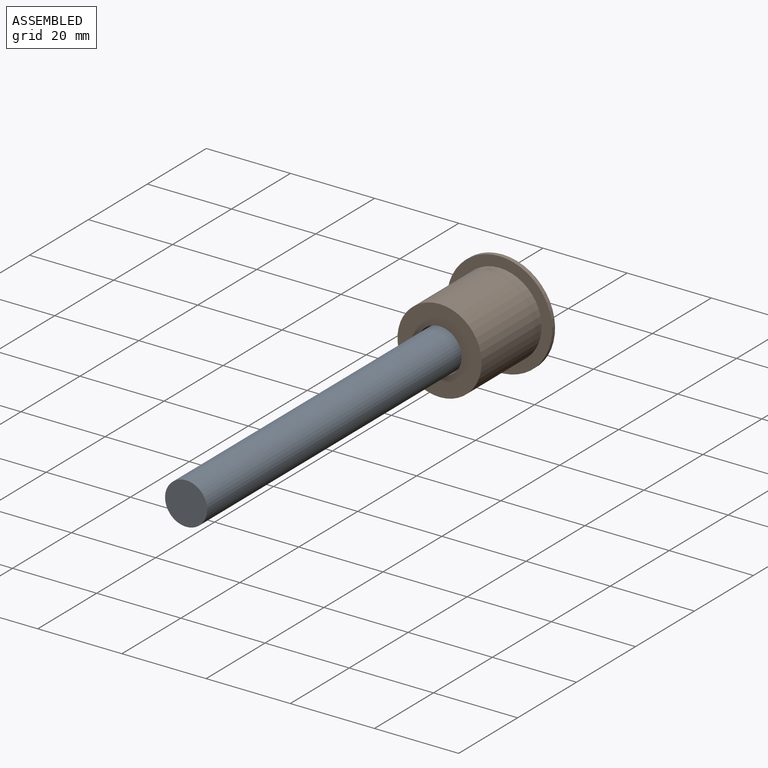
[diagram: assembled view]
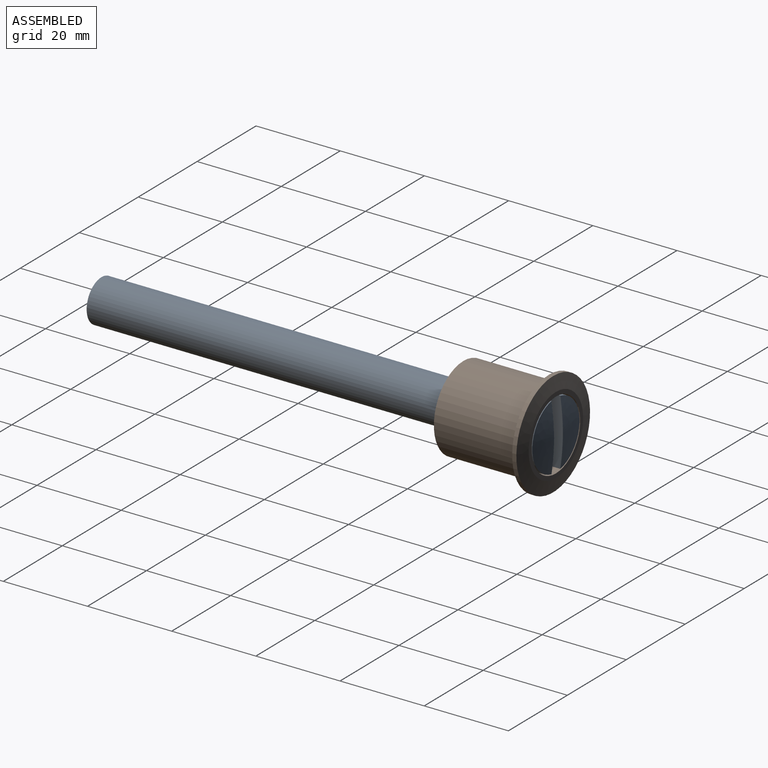
[diagram: assembled view, second angle]
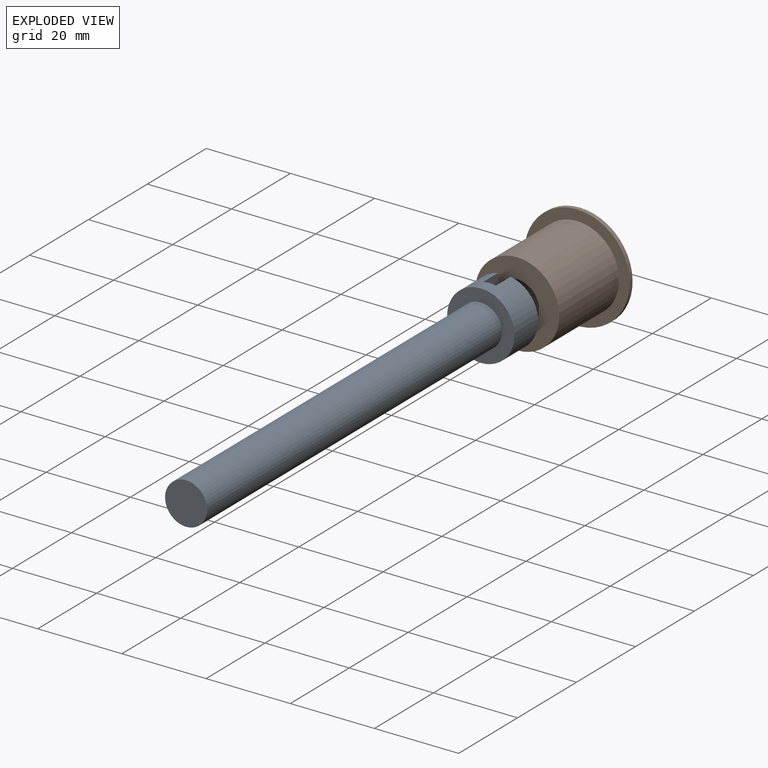
[diagram: exploded view]
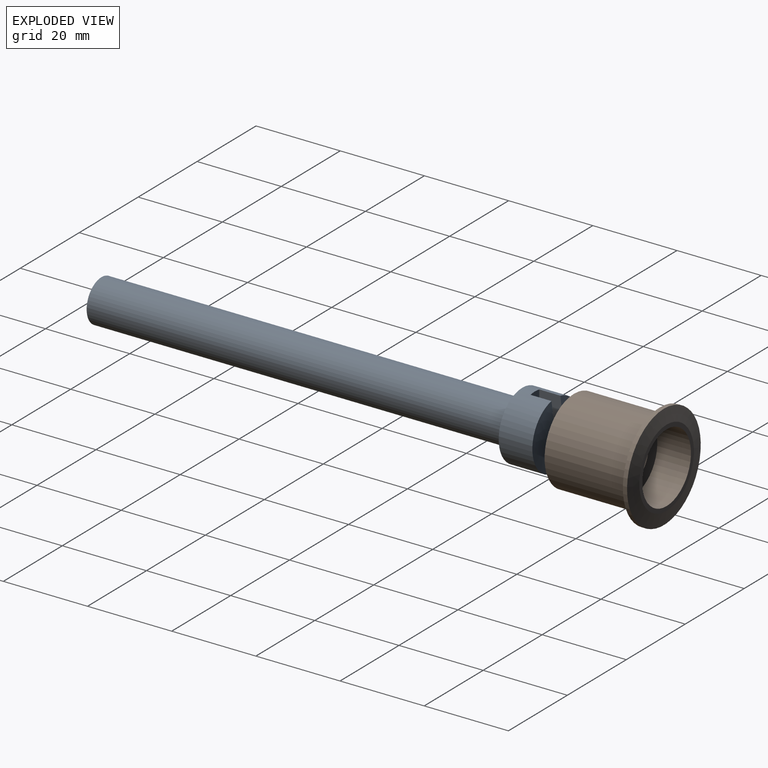
[diagram: exploded view, second angle]
ASSEMBLY  parts=2 mates=2
PART A: 9 faces, bbox 16x108.6x16 mm
  f0: revolved ~15.72x7.72mm, area 77.2mm2, adj f1,f7
  f1: cylinder r=8mm len=16mm, axis (0,1,0), area 371.9mm2, adj f0,f2,f5,f6,f7,f8
  f2: plane 16x16mm, normal (0,-1,0), area 122.5mm2, adj f1,f3
  f3: cylinder r=5mm len=100mm, axis (0,1,0), area 3141.6mm2, adj f2,f4
  f4: plane 10x10mm, normal (0,-1,0), area 78.5mm2, adj f3
  f5: revolved ~15.72x7.72mm, area 77.2mm2, adj f1,f6
  f6: plane 15.72x5.61mm, normal (1,0,0), area 84.8mm2, adj f1,f5,f8
  f7: plane 15.72x5.61mm, normal (-1,0,0), area 84.8mm2, adj f0,f1,f8
  f8: plane 16x3mm, normal (0,1,0), area 47.7mm2, adj f1,f6,f7
PART B: 9 faces, bbox 25x22x25 mm
  f0: plane 18.5x18.5mm, normal (0,1,0), area 55mm2, adj f1,f8
  f1: cone r=9.25mm half-angle=78.7deg, axis (0,-1,0), area 226.5mm2, adj f0,f2
  f2: cylinder r=12.5mm len=25mm, axis (0,1,0), area 78.5mm2, adj f1,f3
  f3: plane 25x25mm, normal (0,-1,0), area 176.7mm2, adj f2,f4
  f4: cylinder r=10mm len=20.35mm, axis (0,1,0), area 1278.6mm2, adj f3,f5
  f5: plane 20x20mm, normal (0,-1,0), area 227.6mm2, adj f4,f6
  f6: cylinder r=5.25mm len=14mm, axis (0,1,0), area 461.8mm2, adj f5,f7
  f7: plane 16.5x16.5mm, normal (0,1,0), area 127.2mm2, adj f6,f8
  f8: cylinder r=8.25mm len=16.5mm, axis (0,1,0), area 414.7mm2, adj f0,f7
PLACE A t=(8.02,-13.11,9.89)mm
PLACE B t=(8.02,-13.11,9.89)mm
MATE parallel A.f1 <-> B.f1  axis (0,-1,0) through (8.02,-21.11,9.89)mm
MATE slider A.f1 <-> B.f1  axis (0,1,0) through (8.02,-71.11,9.89)mm
